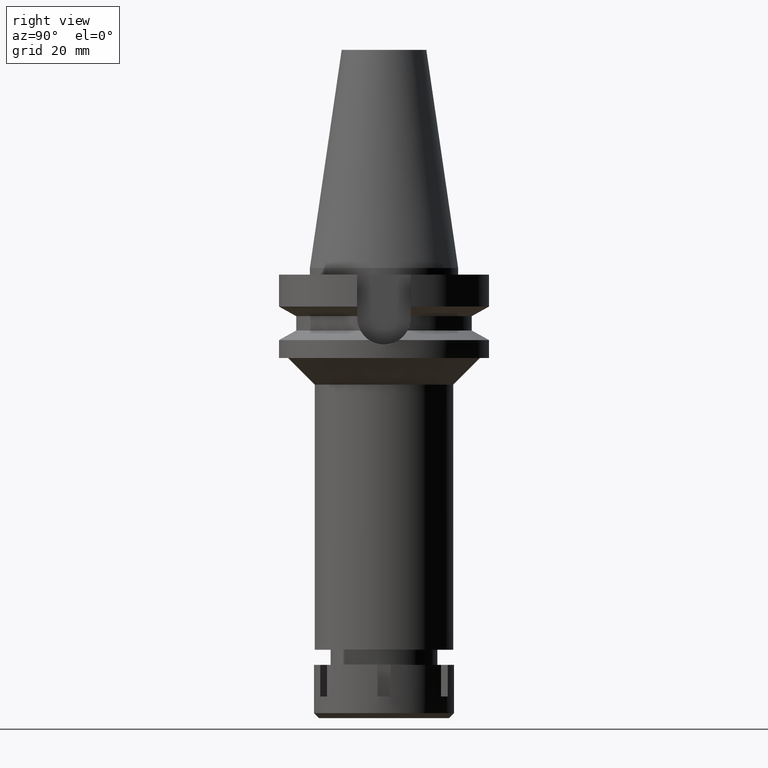
[diagram: clean part render]
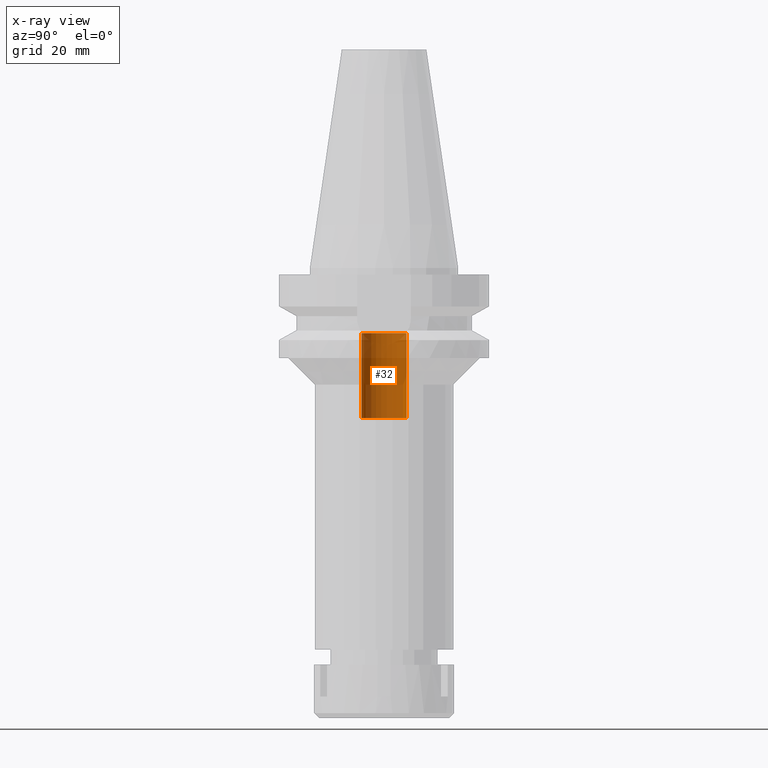
[diagram: x-ray — body ghosted, one internal face saturated and labeled with its STEP entity id]
A machine part, right view, then the same camera in x-ray: the body is ghosted and one INTERNAL B-rep face — a face not visible from any outside direction — is saturated and labeled: STEP entity #32.
In plain terms, the highlighted cylindrical surface (edge-blend (fillet) strip) has radius 6.75 mm, axis along (0, 0, -1).
Its self-contained STEP definition (entity closure, byte-faithful):
#32 = ADVANCED_FACE ( 'NONE', ( #2645 ), #333, .F. ) ;
#154 = ORIENTED_EDGE ( 'NONE', *, *, #1042, .F. ) ;
#295 = VECTOR ( 'NONE', #1814, 1000.000000000000000 ) ;
#333 = CYLINDRICAL_SURFACE ( 'NONE', #2871, 6.750000000000000000 ) ;
#561 = CARTESIAN_POINT ( 'NONE',  ( 0.0000000000000000000, 2.143376827867999896E-14, -19.59999999999999787 ) ) ;
#567 = ORIENTED_EDGE ( 'NONE', *, *, #1133, .T. ) ;
#647 = CARTESIAN_POINT ( 'NONE',  ( 0.0000000000000000000, -6.750000000000000000, -45.00000000000000000 ) ) ;
#666 = DIRECTION ( 'NONE',  ( 0.0000000000000000000, 0.0000000000000000000, 1.000000000000000000 ) ) ;
#688 = CARTESIAN_POINT ( 'NONE',  ( 0.0000000000000000000, -6.750000000000000000, -45.00000000000000000 ) ) ;
#700 = LINE ( 'NONE', #647, #295 ) ;
#800 = VERTEX_POINT ( 'NONE', #3146 ) ;
#975 = VERTEX_POINT ( 'NONE', #3474 ) ;
#1042 = EDGE_CURVE ( 'NONE', #2055, #975, #700, .T. ) ;
#1133 = EDGE_CURVE ( 'NONE', #800, #2335, #1837, .T. ) ;
#1618 = DIRECTION ( 'NONE',  ( 0.0000000000000000000, 0.0000000000000000000, -1.000000000000000000 ) ) ;
#1649 = VECTOR ( 'NONE', #666, 1000.000000000000000 ) ;
#1692 = EDGE_CURVE ( 'NONE', #2055, #800, #2176, .T. ) ;
#1814 = DIRECTION ( 'NONE',  ( 0.0000000000000000000, 0.0000000000000000000, 1.000000000000000000 ) ) ;
#1830 = CARTESIAN_POINT ( 'NONE',  ( 0.0000000000000000000, 2.143376827867999896E-14, -45.00000000000000000 ) ) ;
#1837 = LINE ( 'NONE', #2080, #1649 ) ;
#1907 = EDGE_CURVE ( 'NONE', #2335, #975, #2578, .T. ) ;
#2055 = VERTEX_POINT ( 'NONE', #688 ) ;
#2080 = CARTESIAN_POINT ( 'NONE',  ( 0.0000000000000000000, 6.750000000000000000, -45.00000000000000000 ) ) ;
#2176 = CIRCLE ( 'NONE', #2934, 6.750000000000000000 ) ;
#2311 = CARTESIAN_POINT ( 'NONE',  ( 0.0000000000000000000, 2.143376827867999896E-14, 75.02000000000001023 ) ) ;
#2335 = VERTEX_POINT ( 'NONE', #3304 ) ;
#2416 = DIRECTION ( 'NONE',  ( 0.0000000000000000000, 0.0000000000000000000, -1.000000000000000000 ) ) ;
#2444 = ORIENTED_EDGE ( 'NONE', *, *, #1907, .T. ) ;
#2475 = DIRECTION ( 'NONE',  ( 0.0000000000000000000, 1.000000000000000000, 0.0000000000000000000 ) ) ;
#2578 = CIRCLE ( 'NONE', #2996, 6.750000000000000000 ) ;
#2645 = FACE_OUTER_BOUND ( 'NONE', #3600, .T. ) ;
#2871 = AXIS2_PLACEMENT_3D ( 'NONE', #2311, #2416, #3339 ) ;
#2934 = AXIS2_PLACEMENT_3D ( 'NONE', #1830, #1618, #2943 ) ;
#2943 = DIRECTION ( 'NONE',  ( 0.0000000000000000000, -1.000000000000000000, 0.0000000000000000000 ) ) ;
#2996 = AXIS2_PLACEMENT_3D ( 'NONE', #561, #3609, #2475 ) ;
#3146 = CARTESIAN_POINT ( 'NONE',  ( 0.0000000000000000000, 6.750000000000000000, -45.00000000000000000 ) ) ;
#3149 = ORIENTED_EDGE ( 'NONE', *, *, #1692, .T. ) ;
#3304 = CARTESIAN_POINT ( 'NONE',  ( 0.0000000000000000000, 6.750000000000000000, -19.59999999999999787 ) ) ;
#3339 = DIRECTION ( 'NONE',  ( 0.0000000000000000000, -1.000000000000000000, 0.0000000000000000000 ) ) ;
#3474 = CARTESIAN_POINT ( 'NONE',  ( 0.0000000000000000000, -6.750000000000000000, -19.59999999999999787 ) ) ;
#3600 = EDGE_LOOP ( 'NONE', ( #2444, #154, #3149, #567 ) ) ;
#3609 = DIRECTION ( 'NONE',  ( 0.0000000000000000000, 0.0000000000000000000, 1.000000000000000000 ) ) ;